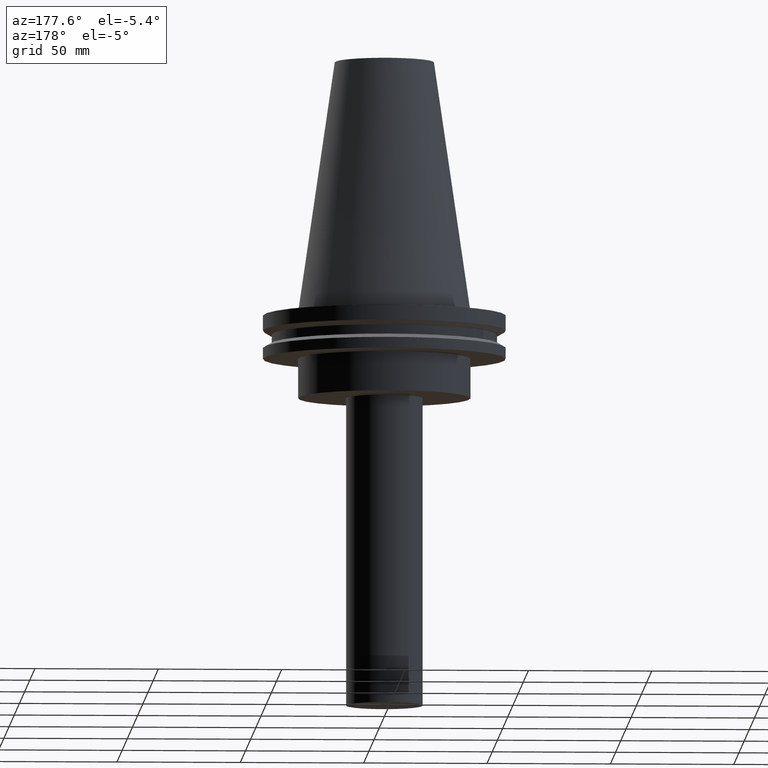
[diagram: clean part render]
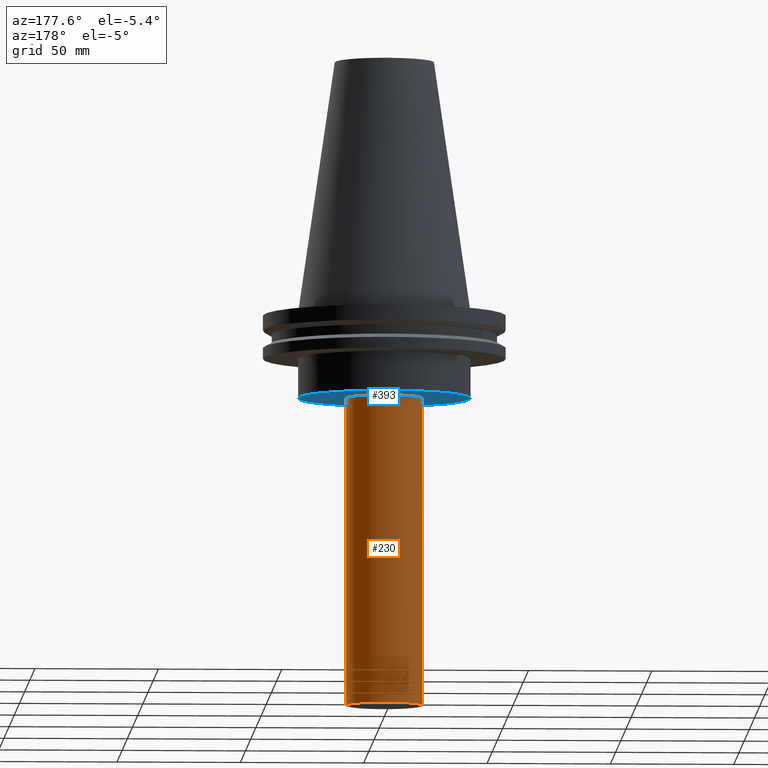
[diagram: same view with the hole feature highlighted: cylindrical wall and planar end face, labeled with their STEP entity ids]
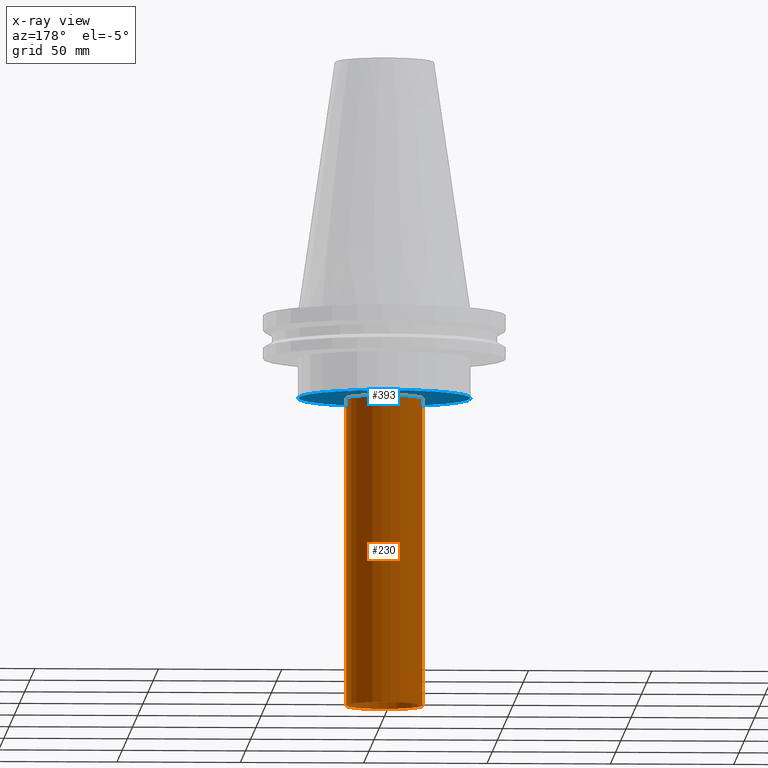
[diagram: x-ray of the same camera — body ghosted, the hole faces saturated]
A machine part, auxiliary view. The highlighted faces form one hole feature of diameter 31 mm: the cylindrical wall (entity #230, orange) and its adjacent planar end face (entity #393, blue) — they share a circular edge in the B-rep.
The next image is the same camera in x-ray (body ghosted, the hole faces saturated) — the bore reads through the body.
Wall:
#5 = CARTESIAN_POINT ( 'NONE',  ( 15.50000000000000000, 0.000000000000000000, -159.9999999999999147 ) ) ;
#42 = DIRECTION ( 'NONE',  ( -0.000000000000000000, -0.000000000000000000, 1.000000000000000000 ) ) ;
#62 = CARTESIAN_POINT ( 'NONE',  ( 15.50000000000000000, 0.000000000000000000, -35.00000000000000000 ) ) ;
#78 = EDGE_LOOP ( 'NONE', ( #304 ) ) ;
#86 = DIRECTION ( 'NONE',  ( -0.000000000000000000, -0.000000000000000000, 1.000000000000000000 ) ) ;
#90 = EDGE_LOOP ( 'NONE', ( #370 ) ) ;
#93 = DIRECTION ( 'NONE',  ( 1.000000000000000000, 0.000000000000000000, 0.000000000000000000 ) ) ;
#103 = DIRECTION ( 'NONE',  ( -0.000000000000000000, -0.000000000000000000, 1.000000000000000000 ) ) ;
#105 = DIRECTION ( 'NONE',  ( 1.000000000000000000, 0.000000000000000000, 0.000000000000000000 ) ) ;
#109 = CIRCLE ( 'NONE', #305, 15.50000000000000000 ) ;
#121 = EDGE_CURVE ( 'NONE', #282, #282, #361, .T. ) ;
#137 = CARTESIAN_POINT ( 'NONE',  ( 0.000000000000000000, 0.000000000000000000, 0.000000000000000000 ) ) ;
#177 = AXIS2_PLACEMENT_3D ( 'NONE', #283, #42, #93 ) ;
#181 = VERTEX_POINT ( 'NONE', #62 ) ;
#205 = DIRECTION ( 'NONE',  ( 1.000000000000000000, 0.000000000000000000, 0.000000000000000000 ) ) ;
#224 = CYLINDRICAL_SURFACE ( 'NONE', #289, 15.50000000000000000 ) ;
#230 = ADVANCED_FACE ( 'NONE', ( #384, #381 ), #224, .T. ) ;
#282 = VERTEX_POINT ( 'NONE', #5 ) ;
#283 = CARTESIAN_POINT ( 'NONE',  ( 0.000000000000000000, 0.000000000000000000, -159.9999999999999147 ) ) ;
#289 = AXIS2_PLACEMENT_3D ( 'NONE', #137, #103, #105 ) ;
#304 = ORIENTED_EDGE ( 'NONE', *, *, #307, .F. ) ;
#305 = AXIS2_PLACEMENT_3D ( 'NONE', #368, #86, #205 ) ;
#307 = EDGE_CURVE ( 'NONE', #181, #181, #109, .T. ) ;
#361 = CIRCLE ( 'NONE', #177, 15.50000000000000000 ) ;
#368 = CARTESIAN_POINT ( 'NONE',  ( 0.000000000000000000, 0.000000000000000000, -35.00000000000000000 ) ) ;
#370 = ORIENTED_EDGE ( 'NONE', *, *, #121, .T. ) ;
#381 = FACE_OUTER_BOUND ( 'NONE', #90, .T. ) ;
#384 = FACE_OUTER_BOUND ( 'NONE', #78, .T. ) ;
End face:
#47 = DIRECTION ( 'NONE',  ( 1.000000000000000000, 0.000000000000000000, 0.000000000000000000 ) ) ;
#55 = CIRCLE ( 'NONE', #281, 34.92499999999999716 ) ;
#60 = ORIENTED_EDGE ( 'NONE', *, *, #307, .T. ) ;
#62 = CARTESIAN_POINT ( 'NONE',  ( 15.50000000000000000, 0.000000000000000000, -35.00000000000000000 ) ) ;
#86 = DIRECTION ( 'NONE',  ( -0.000000000000000000, -0.000000000000000000, 1.000000000000000000 ) ) ;
#91 = FACE_OUTER_BOUND ( 'NONE', #270, .T. ) ;
#109 = CIRCLE ( 'NONE', #305, 15.50000000000000000 ) ;
#156 = VERTEX_POINT ( 'NONE', #374 ) ;
#157 = PLANE ( 'NONE',  #214 ) ;
#160 = CARTESIAN_POINT ( 'NONE',  ( 0.000000000000000000, 34.92499999999999716, -35.00000000000000000 ) ) ;
#181 = VERTEX_POINT ( 'NONE', #62 ) ;
#205 = DIRECTION ( 'NONE',  ( 1.000000000000000000, 0.000000000000000000, 0.000000000000000000 ) ) ;
#214 = AXIS2_PLACEMENT_3D ( 'NONE', #160, #377, #346 ) ;
#270 = EDGE_LOOP ( 'NONE', ( #306 ) ) ;
#273 = EDGE_CURVE ( 'NONE', #156, #156, #55, .T. ) ;
#275 = FACE_BOUND ( 'NONE', #364, .T. ) ;
#281 = AXIS2_PLACEMENT_3D ( 'NONE', #358, #330, #47 ) ;
#305 = AXIS2_PLACEMENT_3D ( 'NONE', #368, #86, #205 ) ;
#306 = ORIENTED_EDGE ( 'NONE', *, *, #273, .F. ) ;
#307 = EDGE_CURVE ( 'NONE', #181, #181, #109, .T. ) ;
#330 = DIRECTION ( 'NONE',  ( -0.000000000000000000, -0.000000000000000000, 1.000000000000000000 ) ) ;
#346 = DIRECTION ( 'NONE',  ( 1.000000000000000000, 0.000000000000000000, 0.000000000000000000 ) ) ;
#358 = CARTESIAN_POINT ( 'NONE',  ( 0.000000000000000000, 0.000000000000000000, -35.00000000000000000 ) ) ;
#364 = EDGE_LOOP ( 'NONE', ( #60 ) ) ;
#368 = CARTESIAN_POINT ( 'NONE',  ( 0.000000000000000000, 0.000000000000000000, -35.00000000000000000 ) ) ;
#374 = CARTESIAN_POINT ( 'NONE',  ( 34.92499999999999716, 0.000000000000000000, -35.00000000000000000 ) ) ;
#377 = DIRECTION ( 'NONE',  ( 0.000000000000000000, -0.000000000000000000, 1.000000000000000000 ) ) ;
#393 = ADVANCED_FACE ( 'NONE', ( #275, #91 ), #157, .F. ) ;